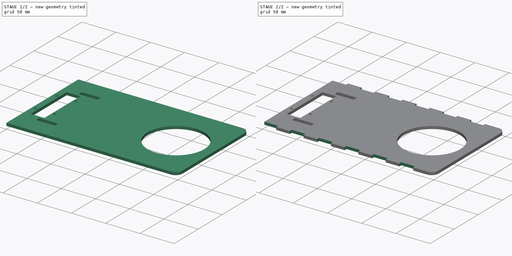
[diagram: build sequence overview — one tinted view per stage of 2, left to right]
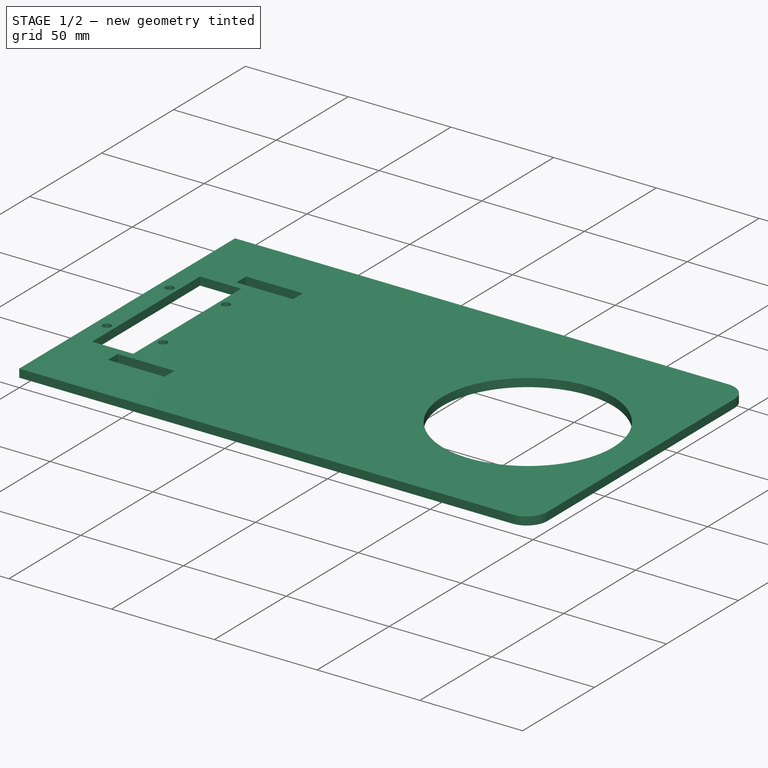
[diagram: stage 1 of 2 — iso view after this stage's code; geometry added in this stage tinted green]
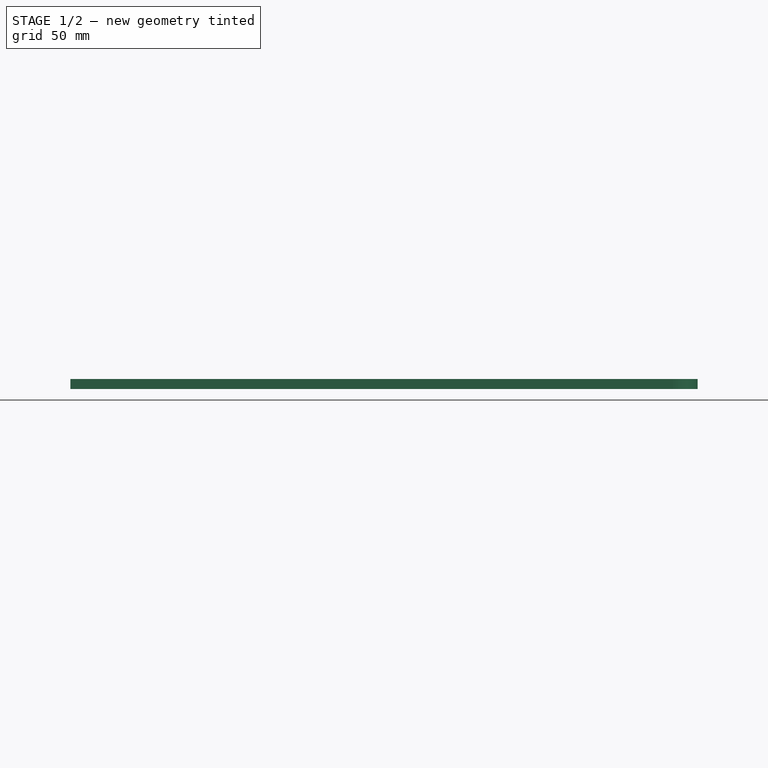
[diagram: stage 1 of 2 — front view after this stage's code; geometry added in this stage tinted green]
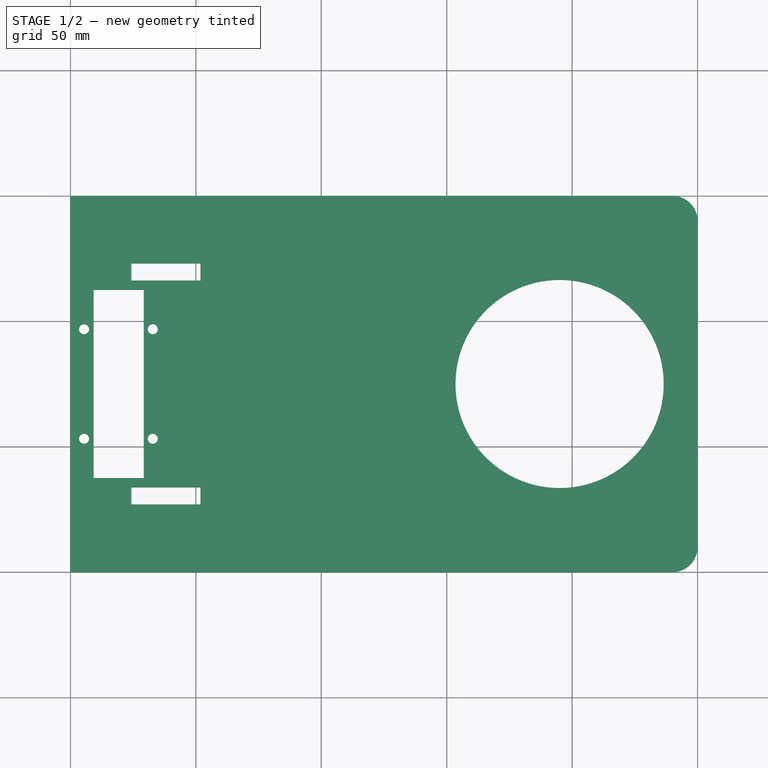
[diagram: stage 1 of 2 — top view after this stage's code; geometry added in this stage tinted green]
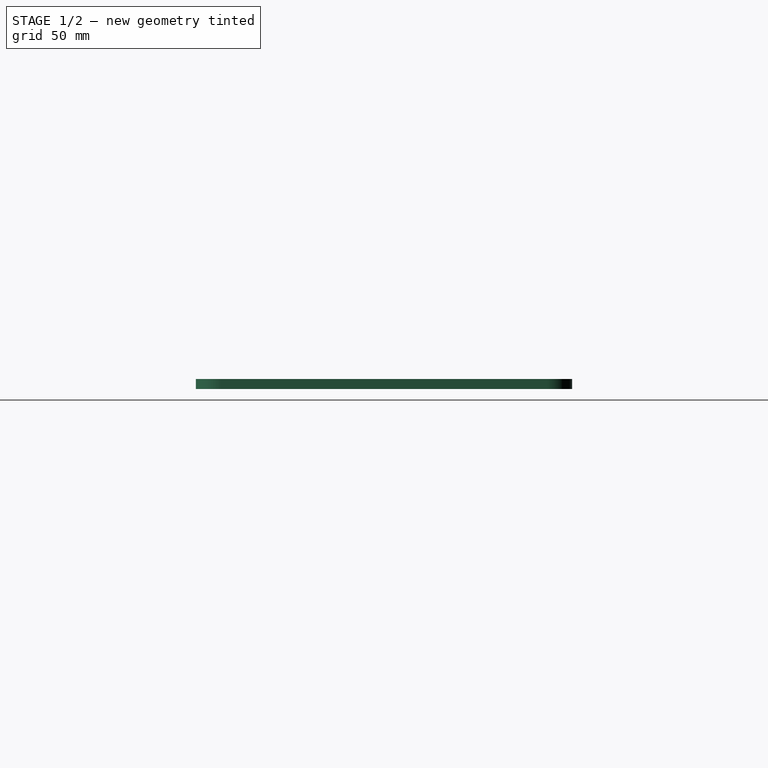
[diagram: stage 1 of 2 — right view after this stage's code; geometry added in this stage tinted green]
FCSTD DOCUMENT  (FreeCAD 1.0R39319 (Git))
Label: chassis_BASE_A4
License: All rights reserved
LicenseURL: https://en.wikipedia.org/wiki/All_rights_reserved
objects: Sketcher::SketchObject×3, PartDesign::Pocket×2, PartDesign::Pad×1, PartDesign::Body×1
note: 16 computed .brp shape members not serialized (recipe doc carries the construction recipe); baked Part::Feature solids carry a one-line shape summary decoded from their .brp

FEATURE [Sketcher::SketchObject] Sketch001
  ArcFitTolerance = 1e-06
  AttachmentSupport = -> [XY_Plane]
  FullyConstrained = true
  MakeInternals = false
  MapMode = 5
  sketch-geometry (8):
    g0: LineSegment StartX=0 StartY=1.8e-15 StartZ=0 EndX=240 EndY=1.8e-15 EndZ=0
    g1: LineSegment StartX=250 StartY=10 StartZ=0 EndX=250 EndY=140 EndZ=0
    g2: LineSegment StartX=240 StartY=150 StartZ=0 EndX=0 EndY=150 EndZ=0
    g3: LineSegment StartX=0 StartY=150 StartZ=0 EndX=0 EndY=0 EndZ=0
    g4: ArcOfCircle CenterX=240 CenterY=140 CenterZ=0 NormalX=0 NormalY=0 NormalZ=1 AngleXU=0 Radius=10 StartAngle=9.5e-15 EndAngle=1.5708
    g5: GeomPoint [constr] X=250 Y=150 Z=0
    g6: ArcOfCircle CenterX=240 CenterY=10 CenterZ=0 NormalX=0 NormalY=0 NormalZ=1 AngleXU=0 Radius=10 StartAngle=4.71239 EndAngle=6.28319
    g7: GeomPoint [constr] X=250 Y=0 Z=0
  constraints (19):
    c: Coincident(g2,g3)
    c: Coincident(g3,g0)
    c: Horizontal(g0)
    c: Horizontal(g2)
    c: Vertical(g1)
    c: Vertical(g3)
    c: Coincident(g0,g-1)
    c: DistanceX(g2,g5) = 250
    c: DistanceY(g3,g3) = 150
    c: PointOnObject(g5,g2)
    c: PointOnObject(g5,g1)
    c: Tangent(g2,g4) = -1.5708
    c: Tangent(g1,g4) = -1.5708
    c: PointOnObject(g7,g0)
    c: PointOnObject(g7,g1)
    c: Tangent(g0,g6) = -1.5708
    c: Tangent(g1,g6) = -1.5708
    c: Equal(g6,g4)
    c: Radius(g6) = 10
FEATURE [PartDesign::Pad] Pad001
  Direction = (0,0,1)
  Length = 4
  Length2 = 10
  Profile = -> Sketch001
  ReferenceAxis = -> Sketch001 [N_Axis]
  Refine = true
  Suppressed = false
  Type = 0
FEATURE [Sketcher::SketchObject] Sketch
  ArcFitTolerance = 1e-06
  AttachmentSupport = -> [Pad001]
  ExternalGeometry = -> [Pad001]
  FullyConstrained = false
  MakeInternals = false
  MapMode = 5
  Placement = pos=(0,0,4) rot=(0,0,1;0rad)
  sketch-geometry (34):
    g0: Circle CenterX=195 CenterY=75 CenterZ=0 NormalX=0 NormalY=0 NormalZ=1 AngleXU=0 Radius=41.5
    g1: LineSegment [constr] StartX=195 StartY=75 StartZ=0 EndX=195 EndY=150 EndZ=0
    g2: LineSegment [constr] StartX=195 StartY=75 StartZ=0 EndX=195 EndY=0 EndZ=0
    g3: LineSegment StartX=9.23658 StartY=112.5 StartZ=0 EndX=9.23658 EndY=37.5 EndZ=0
    g4: LineSegment StartX=9.23658 StartY=37.5 StartZ=0 EndX=29.2366 EndY=37.5 EndZ=0
    g5: LineSegment StartX=29.2366 StartY=112.5 StartZ=0 EndX=9.23658 EndY=112.5 EndZ=0
    g6: LineSegment [constr] StartX=195 StartY=75 StartZ=0 EndX=29.2366 EndY=75 EndZ=0
    g7: LineSegment StartX=29.2366 StartY=75 StartZ=0 EndX=29.2366 EndY=112.5 EndZ=0
    g8: LineSegment StartX=29.2366 StartY=75 StartZ=0 EndX=29.2366 EndY=37.5 EndZ=0
    g9: LineSegment [constr] StartX=5.43339 StartY=96.8373 StartZ=0 EndX=5.43339 EndY=53.1627 EndZ=0
    g10: LineSegment [constr] StartX=5.43339 StartY=53.1627 StartZ=0 EndX=32.824 EndY=53.1627 EndZ=0
    g11: LineSegment [constr] StartX=32.824 StartY=96.8373 StartZ=0 EndX=5.43339 EndY=96.8373 EndZ=0
    g12: Circle CenterX=5.43339 CenterY=53.1627 CenterZ=0 NormalX=0 NormalY=0 NormalZ=1 AngleXU=0 Radius=2
    g13: Circle CenterX=32.824 CenterY=96.8373 CenterZ=0 NormalX=0 NormalY=0 NormalZ=1 AngleXU=0 Radius=2
    g14: Circle CenterX=32.824 CenterY=53.1627 CenterZ=0 NormalX=0 NormalY=0 NormalZ=1 AngleXU=0 Radius=2
    g15: Circle CenterX=5.43339 CenterY=96.8373 CenterZ=0 NormalX=0 NormalY=0 NormalZ=1 AngleXU=0 Radius=2
    g16: LineSegment [constr] StartX=32.824 StartY=75 StartZ=0 EndX=32.824 EndY=96.8373 EndZ=0
    g17: LineSegment [constr] StartX=32.824 StartY=75 StartZ=0 EndX=32.824 EndY=53.1627 EndZ=0
    g18: LineSegment [constr] StartX=85.2298 StartY=92.5241 StartZ=0 EndX=85.2298 EndY=57.5241 EndZ=0
    g19: LineSegment [constr] StartX=85.2298 StartY=57.5241 StartZ=0 EndX=130.23 EndY=57.5241 EndZ=0
    g20: LineSegment [constr] StartX=130.23 StartY=57.5241 StartZ=0 EndX=130.23 EndY=92.5241 EndZ=0
    g21: LineSegment [constr] StartX=130.23 StartY=92.5241 StartZ=0 EndX=85.2298 EndY=92.5241 EndZ=0
    g22: Circle [constr] CenterX=130.23 CenterY=75.0241 CenterZ=0 NormalX=0 NormalY=0 NormalZ=1 AngleXU=0 Radius=17.5
    g23: LineSegment StartX=24.2899 StartY=26.9881 StartZ=0 EndX=24.2899 EndY=33.78 EndZ=0
    g24: LineSegment StartX=24.2899 StartY=33.78 StartZ=0 EndX=51.8634 EndY=33.78 EndZ=0
    g25: LineSegment StartX=51.8634 StartY=33.78 StartZ=0 EndX=51.8634 EndY=26.9881 EndZ=0
    g26: LineSegment StartX=51.8634 StartY=26.9881 StartZ=0 EndX=24.2899 EndY=26.9881 EndZ=0
    g27: LineSegment StartX=24.2899 StartY=123.012 StartZ=0 EndX=24.2899 EndY=116.22 EndZ=0
    g28: LineSegment StartX=24.2899 StartY=116.22 StartZ=0 EndX=51.8634 EndY=116.22 EndZ=0
    g29: LineSegment StartX=51.8634 StartY=116.22 StartZ=0 EndX=51.8634 EndY=123.012 EndZ=0
    g30: LineSegment StartX=51.8634 StartY=123.012 StartZ=0 EndX=24.2899 EndY=123.012 EndZ=0
    g31: LineSegment [constr] StartX=24.2899 StartY=117.965 StartZ=0 EndX=24.2899 EndY=33.7815 EndZ=0
    g32: LineSegment [constr] StartX=51.8634 StartY=33.78 StartZ=0 EndX=51.8634 EndY=75 EndZ=0
    g33: LineSegment [constr] StartX=51.8634 StartY=75 StartZ=0 EndX=51.8634 EndY=116.22 EndZ=0
  constraints (83):
    c: Diameter(g0) = 83
    c: Coincident(g1,g0)
    c: PointOnObject(g1,g-3)
    c: Vertical(g1)
    c: Coincident(g2,g0)
    c: PointOnObject(g2,g-5)
    c: Vertical(g2)
    c: Equal(g2,g1)
    c: DistanceX(g0,g-4) = 55
    c: Coincident(g3,g4)
    c: Coincident(g5,g3)
    c: Vertical(g3)
    c: Horizontal(g4)
    c: Horizontal(g5)
    c: DistanceY(g4,g5) = 75
    c: DistanceX(g4,g4) = 20
    c: Coincident(g6,g0)
    c: Horizontal(g6)
    c: Coincident(g7,g6)
    c: Coincident(g7,g5)
    c: Vertical(g7)
    c: Coincident(g8,g6)
    c: Coincident(g8,g4)
    c: Vertical(g8)
    c: Equal(g8,g7)
    c: Coincident(g9,g10)
    c: Coincident(g16,g11)
    c: Coincident(g11,g9)
    c: Vertical(g9)
    c: Horizontal(g10)
    c: Horizontal(g11)
    c: Coincident(g12,g9)
    c: Coincident(g13,g16)
    c: Coincident(g14,g10)
    c: Coincident(g15,g9)
    c: Equal(g15,g12)
    c: Equal(g12,g14)
    c: Equal(g14,g13)
    c: Diameter(g14) = 4
    c: PointOnObject(g16,g6)
    c: Coincident(g17,g16)
    c: Coincident(g17,g10)
    c: Vertical(g17)
    c: Equal(g17,g16)
    c: Vertical(g16)
    c: Coincident(g18,g19)
    c: Coincident(g19,g20)
    c: Coincident(g20,g21)
    c: Coincident(g21,g18)
    c: Vertical(g18)
    c: Vertical(g20)
    c: Horizontal(g19)
    c: Horizontal(g21)
    c: DistanceX(g21,g21) = 45
    c: DistanceY(g20,g20) = 35
    c: Symmetric(g20,g20,g22)
    c: PointOnObject(g20,g22)
    c: Coincident(g23,g24)
    c: Coincident(g24,g25)
    c: Coincident(g25,g26)
    c: Coincident(g26,g23)
    c: Vertical(g23)
    c: Vertical(g25)
    c: Horizontal(g24)
    c: Horizontal(g26)
    c: Coincident(g27,g28)
    c: Coincident(g28,g29)
    c: Coincident(g29,g30)
    c: Coincident(g30,g27)
    c: Vertical(g27)
    c: Vertical(g29)
    c: Horizontal(g28)
    c: Horizontal(g30)
    c: Equal(g24,g28)
    c: Equal(g29,g25)
    c: Coincident(g32,g24)
    c: PointOnObject(g32,g6)
    c: Vertical(g32)
    c: Coincident(g33,g32)
    c: Coincident(g33,g28)
    c: Vertical(g33)
    c: DistanceY(g32,g32) = 41.22
    c: Equal(g32,g33)
FEATURE [PartDesign::Pocket] Pocket
  BaseFeature = -> Pad001
  Direction = (0,0,-1)
  Length = 5
  Length2 = 5
  Profile = -> Sketch
  ReferenceAxis = -> Sketch [N_Axis]
  Refine = true
  Suppressed = false
  Type = 0
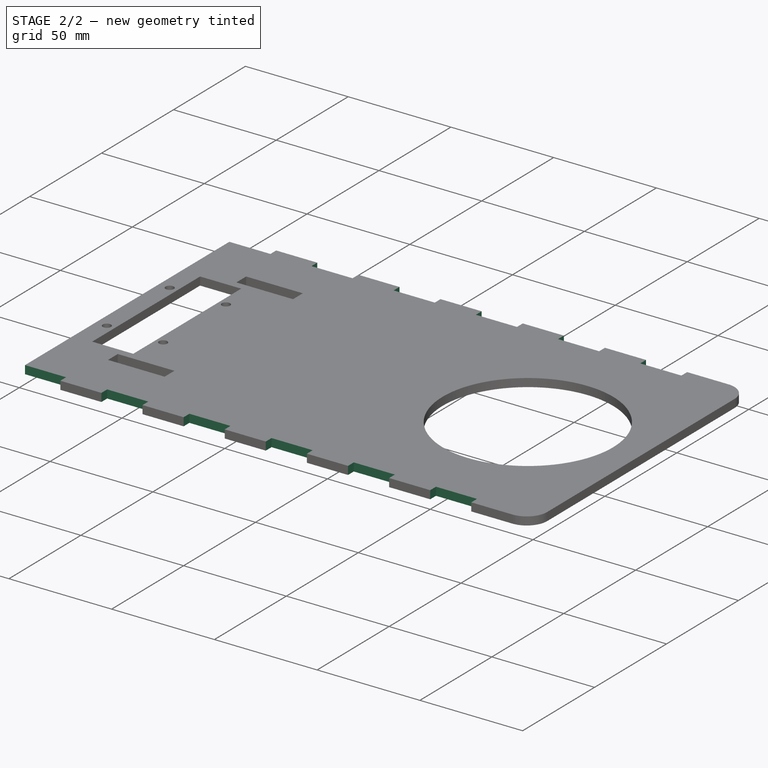
[diagram: stage 2 of 2 — iso view after this stage's code; geometry added in this stage tinted green]
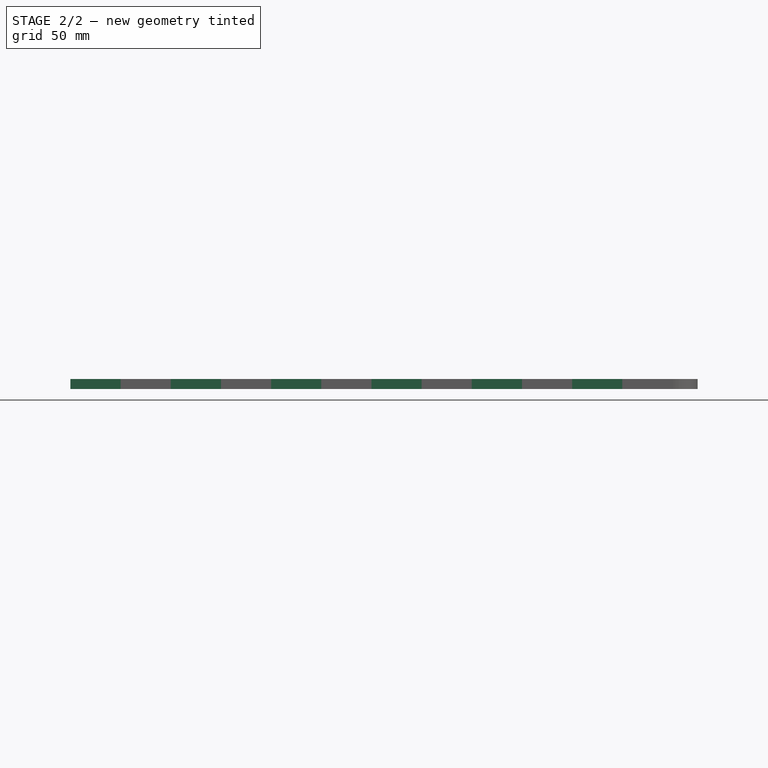
[diagram: stage 2 of 2 — front view after this stage's code; geometry added in this stage tinted green]
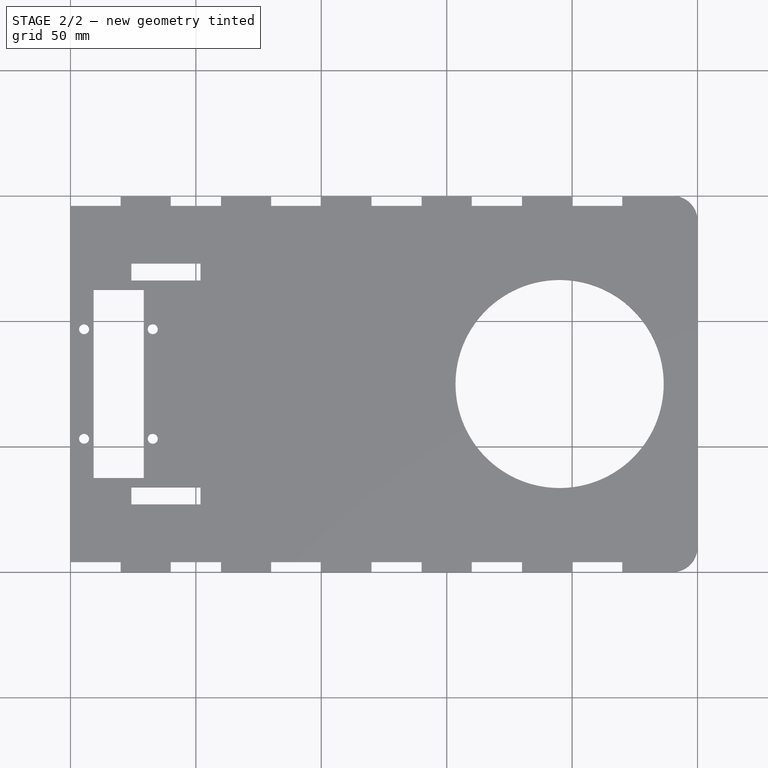
[diagram: stage 2 of 2 — top view after this stage's code; geometry added in this stage tinted green]
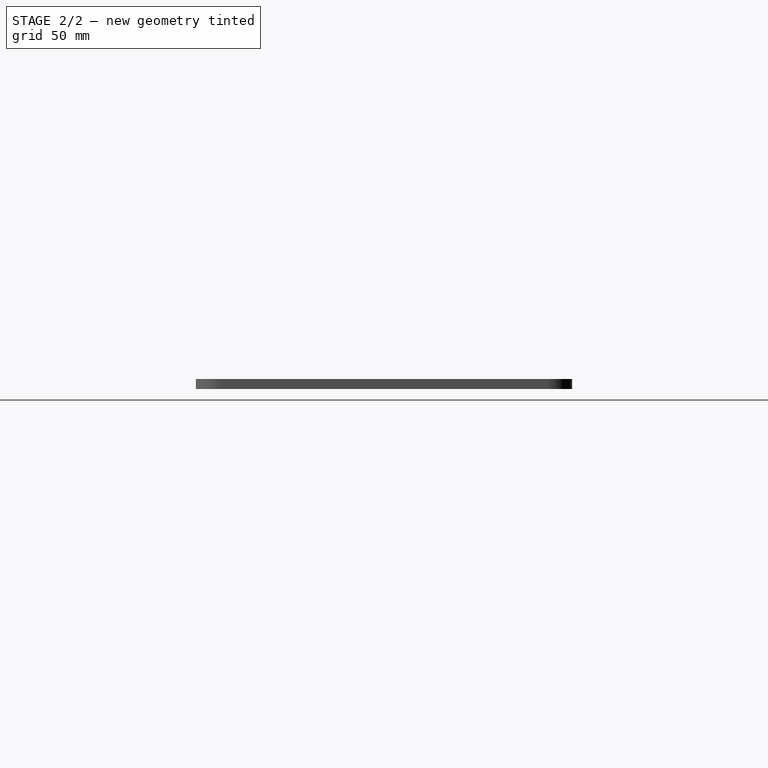
[diagram: stage 2 of 2 — right view after this stage's code; geometry added in this stage tinted green]
FEATURE [Sketcher::SketchObject] Sketch002
  ArcFitTolerance = 1e-06
  AttachmentSupport = -> [XY_Plane]
  ExternalGeometry = -> [Pocket,Sketch001]
  FullyConstrained = false
  MakeInternals = false
  MapMode = 5
  sketch-geometry (57):
    g0: LineSegment [constr] StartX=0 StartY=4 StartZ=0 EndX=200 EndY=4 EndZ=0
    g1: LineSegment StartX=0 StartY=0 StartZ=0 EndX=20 EndY=0 EndZ=0
    g2: LineSegment StartX=20 StartY=0 StartZ=0 EndX=20 EndY=4 EndZ=0
    g3: LineSegment StartX=20 StartY=4 StartZ=0 EndX=0 EndY=4 EndZ=0
    g4: LineSegment StartX=0 StartY=4 StartZ=0 EndX=0 EndY=0 EndZ=0
    g5: LineSegment StartX=40 StartY=0 StartZ=0 EndX=60 EndY=0 EndZ=0
    g6: LineSegment StartX=60 StartY=0 StartZ=0 EndX=60 EndY=4 EndZ=0
    g7: LineSegment StartX=60 StartY=4 StartZ=0 EndX=40 EndY=4 EndZ=0
    g8: LineSegment StartX=40 StartY=4 StartZ=0 EndX=40 EndY=0 EndZ=0
    g9: LineSegment StartX=80 StartY=0 StartZ=0 EndX=100 EndY=0 EndZ=0
    g10: LineSegment StartX=100 StartY=0 StartZ=0 EndX=100 EndY=4 EndZ=0
    g11: LineSegment StartX=100 StartY=4 StartZ=0 EndX=80 EndY=4 EndZ=0
    g12: LineSegment StartX=80 StartY=4 StartZ=0 EndX=80 EndY=0 EndZ=0
    g13: LineSegment StartX=120 StartY=0 StartZ=0 EndX=140 EndY=0 EndZ=0
    g14: LineSegment StartX=140 StartY=0 StartZ=0 EndX=140 EndY=4 EndZ=0
    g15: LineSegment StartX=140 StartY=4 StartZ=0 EndX=120 EndY=4 EndZ=0
    g16: LineSegment StartX=120 StartY=4 StartZ=0 EndX=120 EndY=0 EndZ=0
    g17: LineSegment StartX=160 StartY=0 StartZ=0 EndX=180 EndY=0 EndZ=0
    g18: LineSegment StartX=180 StartY=0 StartZ=0 EndX=180 EndY=4 EndZ=0
    g19: LineSegment StartX=180 StartY=4 StartZ=0 EndX=160 EndY=4 EndZ=0
    g20: LineSegment StartX=160 StartY=4 StartZ=0 EndX=160 EndY=0 EndZ=0
    g21: LineSegment [constr] StartX=0 StartY=146 StartZ=0 EndX=200 EndY=146 EndZ=0
    g22: LineSegment [constr] StartX=200 StartY=146 StartZ=0 EndX=200 EndY=4 EndZ=0
    g23: LineSegment StartX=0 StartY=146 StartZ=0 EndX=20 EndY=146 EndZ=0
    g24: LineSegment StartX=20 StartY=146 StartZ=0 EndX=20 EndY=150 EndZ=0
    g25: LineSegment StartX=20 StartY=150 StartZ=0 EndX=0 EndY=150 EndZ=0
    g26: LineSegment StartX=0 StartY=150 StartZ=0 EndX=0 EndY=146 EndZ=0
    g27: LineSegment StartX=40 StartY=146 StartZ=0 EndX=60 EndY=146 EndZ=0
    g28: LineSegment StartX=60 StartY=146 StartZ=0 EndX=60 EndY=150 EndZ=0
    g29: LineSegment StartX=60 StartY=150 StartZ=0 EndX=40 EndY=150 EndZ=0
    g30: LineSegment StartX=40 StartY=150 StartZ=0 EndX=40 EndY=146 EndZ=0
    g31: LineSegment StartX=80 StartY=146 StartZ=0 EndX=100 EndY=146 EndZ=0
    g32: LineSegment StartX=100 StartY=146 StartZ=0 EndX=100 EndY=150 EndZ=0
    g33: LineSegment StartX=100 StartY=150 StartZ=0 EndX=80 EndY=150 EndZ=0
    g34: LineSegment StartX=80 StartY=150 StartZ=0 EndX=80 EndY=146 EndZ=0
    g35: LineSegment StartX=120 StartY=146 StartZ=0 EndX=140 EndY=146 EndZ=0
    g36: LineSegment StartX=140 StartY=146 StartZ=0 EndX=140 EndY=150 EndZ=0
    g37: LineSegment StartX=140 StartY=150 StartZ=0 EndX=120 EndY=150 EndZ=0
    g38: LineSegment StartX=120 StartY=150 StartZ=0 EndX=120 EndY=146 EndZ=0
    g39: LineSegment StartX=160 StartY=146 StartZ=0 EndX=180 EndY=146 EndZ=0
    g40: LineSegment StartX=180 StartY=146 StartZ=0 EndX=180 EndY=150 EndZ=0
    g41: LineSegment StartX=180 StartY=150 StartZ=0 EndX=160 EndY=150 EndZ=0
    g42: LineSegment StartX=160 StartY=150 StartZ=0 EndX=160 EndY=146 EndZ=0
    g43: LineSegment [constr] StartX=20 StartY=150 StartZ=0 EndX=40 EndY=150 EndZ=0
    g44: LineSegment [constr] StartX=60 StartY=150 StartZ=0 EndX=80 EndY=150 EndZ=0
    g45: LineSegment [constr] StartX=100 StartY=150 StartZ=0 EndX=120 EndY=150 EndZ=0
    g46: LineSegment [constr] StartX=140 StartY=150 StartZ=0 EndX=160 EndY=150 EndZ=0
    g47: LineSegment [constr] StartX=200 StartY=146 StartZ=0 EndX=277.359 EndY=146 EndZ=0
    g48: LineSegment StartX=200 StartY=146 StartZ=0 EndX=220 EndY=146 EndZ=0
    g49: LineSegment StartX=220 StartY=146 StartZ=0 EndX=220 EndY=150 EndZ=0
    g50: LineSegment StartX=220 StartY=150 StartZ=0 EndX=200 EndY=150 EndZ=0
    g51: LineSegment StartX=200 StartY=150 StartZ=0 EndX=200 EndY=146 EndZ=0
    g52: LineSegment [constr] StartX=200 StartY=4 StartZ=0 EndX=281.336 EndY=4 EndZ=0
    g53: LineSegment StartX=200 StartY=4 StartZ=0 EndX=200 EndY=0 EndZ=0
    g54: LineSegment StartX=200 StartY=0 StartZ=0 EndX=220 EndY=0 EndZ=0
    g55: LineSegment StartX=220 StartY=0 StartZ=0 EndX=220 EndY=4 EndZ=0
    g56: LineSegment StartX=220 StartY=4 StartZ=0 EndX=200 EndY=4 EndZ=0
  constraints (163):
    c: PointOnObject(g0,g-2)
    c: Horizontal(g0)
    c: DistanceY(g-1,g0) = 4
    c: Coincident(g1,g2)
    c: Coincident(g2,g3)
    c: Coincident(g3,g4)
    c: Coincident(g4,g1)
    c: Horizontal(g1)
    c: Horizontal(g3)
    c: Vertical(g2)
    c: Vertical(g4)
    c: Coincident(g1,g-1)
    c: PointOnObject(g2,g0)
    c: Coincident(g5,g6)
    c: Coincident(g6,g7)
    c: Coincident(g7,g8)
    c: Coincident(g8,g5)
    c: Horizontal(g5)
    c: Horizontal(g7)
    c: Vertical(g6)
    c: Vertical(g8)
    c: PointOnObject(g5,g-3)
    c: PointOnObject(g6,g0)
    c: Coincident(g9,g10)
    c: Coincident(g10,g11)
    c: Coincident(g11,g12)
    c: Coincident(g12,g9)
    c: Horizontal(g9)
    c: Horizontal(g11)
    c: Vertical(g10)
    c: Vertical(g12)
    c: PointOnObject(g9,g-3)
    c: Symmetric(g0,g0,g10)
    c: Coincident(g13,g14)
    c: Coincident(g14,g15)
    c: Coincident(g15,g16)
    c: Coincident(g16,g13)
    c: Horizontal(g13)
    c: Horizontal(g15)
    c: Vertical(g14)
    c: Vertical(g16)
    c: PointOnObject(g13,g-3)
    c: PointOnObject(g14,g0)
    c: DistanceX(g1,g1) = 20
    c: DistanceX(g1,g5) = 20
    c: DistanceX(g7,g7) = 20
    c: DistanceX(g5,g9) = 20
    c: DistanceX(g9,g9) = 20
    c: DistanceX(g9,g13) = 20
    c: DistanceX(g13,g13) = 20
    c: Coincident(g17,g18)
    c: Coincident(g18,g19)
    c: Coincident(g19,g20)
    c: Coincident(g20,g17)
    c: Horizontal(g17)
    c: Horizontal(g19)
    c: Vertical(g18)
    c: Vertical(g20)
    c: PointOnObject(g17,g-3)
    c: PointOnObject(g18,g0)
    c: Equal(g15,g19)
    c: DistanceX(g13,g17) = 20
    c: PointOnObject(g21,g-2)
    c: Horizontal(g21)
    c: DistanceY(g21,g-4) = 4
    c: Coincident(g22,g21)
    c: Coincident(g22,g0)
    c: Vertical(g22)
    c: Coincident(g23,g24)
    c: Coincident(g24,g25)
    c: Coincident(g25,g26)
    c: Coincident(g26,g23)
    c: Horizontal(g23)
    c: Horizontal(g25)
    c: Vertical(g24)
    c: Vertical(g26)
    c: Coincident(g23,g21)
    c: PointOnObject(g24,g-4)
    c: Coincident(g27,g28)
    c: Coincident(g28,g29)
    c: Coincident(g29,g30)
    c: Coincident(g30,g27)
    c: Horizontal(g27)
    c: Horizontal(g29)
    c: Vertical(g28)
    c: Vertical(g30)
    c: PointOnObject(g27,g21)
    c: PointOnObject(g28,g-4)
    c: Coincident(g31,g32)
    c: Coincident(g32,g33)
    c: Coincident(g33,g34)
    c: Coincident(g34,g31)
    c: Horizontal(g31)
    c: Horizontal(g33)
    c: Vertical(g32)
    c: Vertical(g34)
    c: PointOnObject(g31,g21)
    c: PointOnObject(g32,g-4)
    c: Coincident(g35,g36)
    c: Coincident(g36,g37)
    c: Coincident(g37,g38)
    c: Coincident(g38,g35)
    c: Horizontal(g35)
    c: Horizontal(g37)
    c: Vertical(g36)
    c: Vertical(g38)
    c: PointOnObject(g35,g21)
    c: PointOnObject(g36,g-4)
    c: Coincident(g39,g40)
    c: Coincident(g40,g41)
    c: Coincident(g41,g42)
    c: Coincident(g42,g39)
    c: Horizontal(g39)
    c: Horizontal(g41)
    c: Vertical(g40)
    c: Vertical(g42)
    c: PointOnObject(g39,g21)
    c: PointOnObject(g40,g-4)
    c: Equal(g23,g27)
    c: Equal(g27,g31)
    c: Equal(g31,g35)
    c: Equal(g35,g39)
    c: Coincident(g43,g24)
    c: Coincident(g43,g29)
    c: Coincident(g44,g28)
    c: Coincident(g44,g33)
    c: Coincident(g45,g32)
    c: Coincident(g45,g37)
    c: Coincident(g46,g36)
    c: Coincident(g46,g41)
    c: Equal(g46,g45)
    c: Equal(g45,g44)
    c: Equal(g44,g43)
    c: DistanceX(g23,g23) = 20
    c: DistanceX(g43,g43) = 20
    c: DistanceX(g39,g21) = 20
    c: Coincident(g47,g21)
    c: Horizontal(g47)
    c: Coincident(g48,g49)
    c: Coincident(g49,g50)
    c: Coincident(g50,g51)
    c: Coincident(g51,g48)
    c: Horizontal(g48)
    c: Horizontal(g50)
    c: Vertical(g49)
    c: Vertical(g51)
    c: Coincident(g48,g21)
    c: PointOnObject(g49,g-4)
    c: Equal(g50,g41)
    c: Coincident(g52,g0)
    c: Horizontal(g52)
    c: Coincident(g53,g54)
    c: Coincident(g54,g55)
    c: Coincident(g55,g56)
    c: Coincident(g56,g53)
    c: Vertical(g53)
    c: Vertical(g55)
    c: Horizontal(g54)
    c: Horizontal(g56)
    c: Coincident(g53,g0)
    c: PointOnObject(g54,g-3)
    c: Equal(g56,g19)
    c: DistanceX(g54,g54) = 20
FEATURE [PartDesign::Pocket] Pocket001
  BaseFeature = -> Pocket
  Direction = (0,0,-1)
  Length = 5
  Length2 = 5
  Profile = -> Sketch002
  ReferenceAxis = -> Sketch002 [N_Axis]
  Refine = true
  Reversed = true
  Suppressed = false
  Type = 0
FEATURE [PartDesign::Body] Body
  AllowCompound = false
  Group = -> [Sketch001,Pad001,Sketch,Pocket,Sketch002,Pocket001]
  Origin = -> Origin
  Tip = -> Pocket001
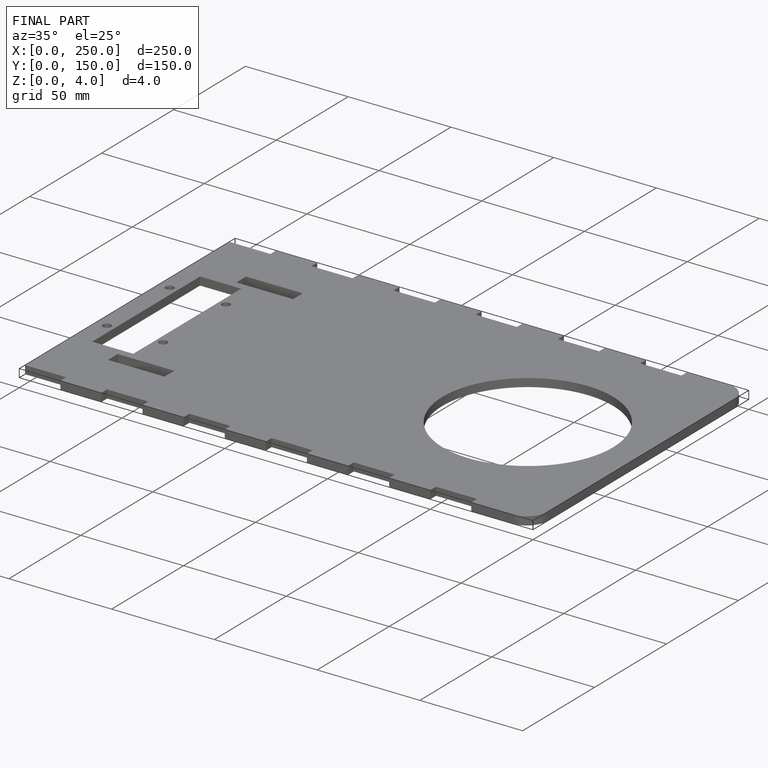
[diagram: finished part — iso view with bounding-box wireframe]
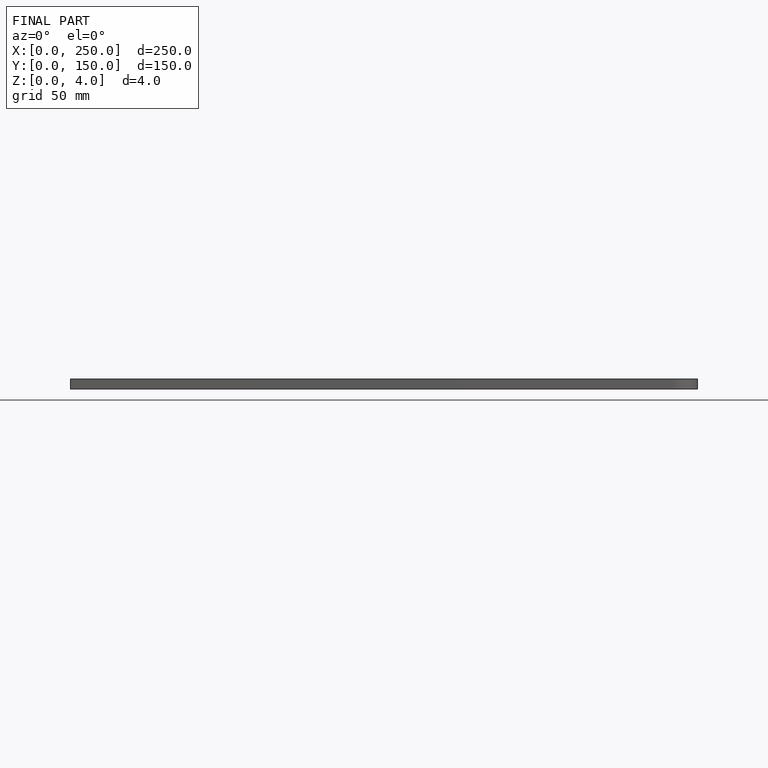
[diagram: finished part — front view with bounding-box wireframe]
